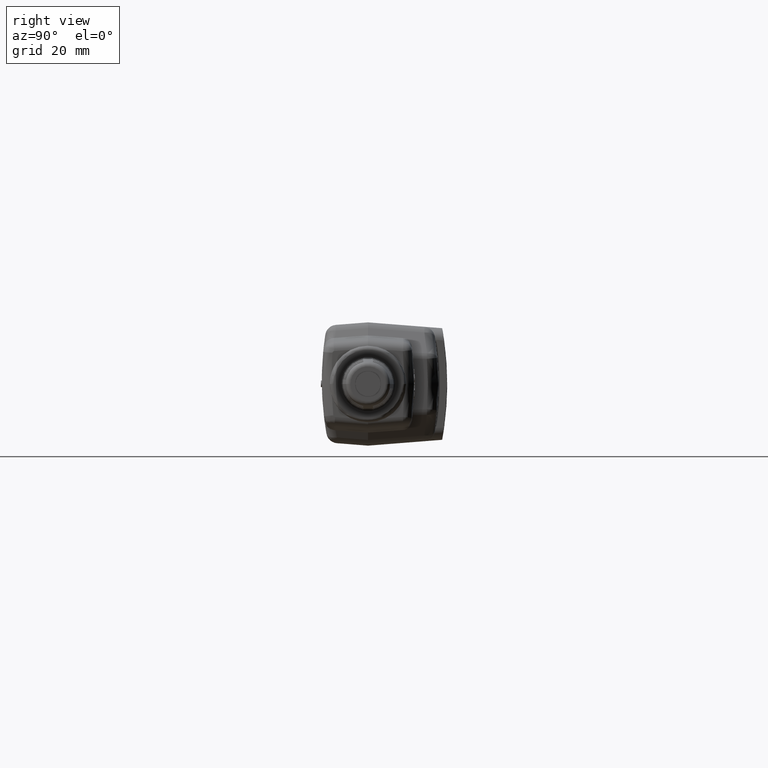
[diagram: clean part render]
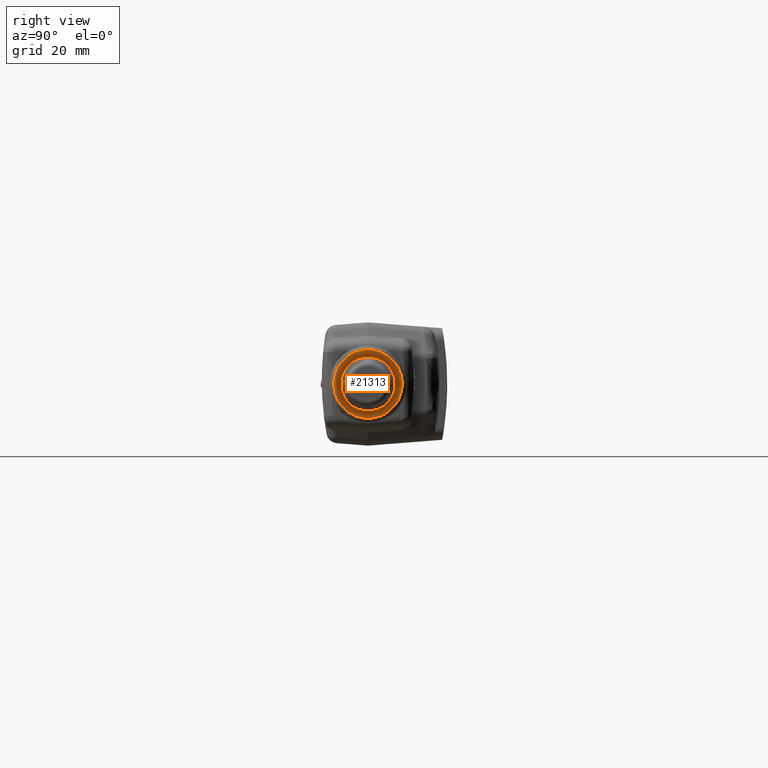
[diagram: same view with one face highlighted and labeled with its STEP entity id]
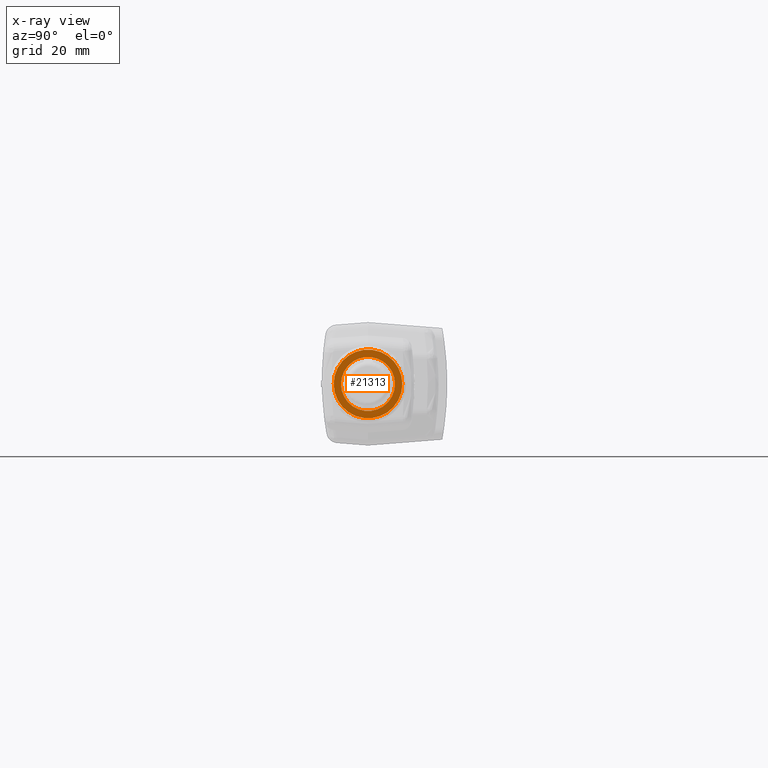
[diagram: x-ray of the same camera — body ghosted, the highlighted face saturated]
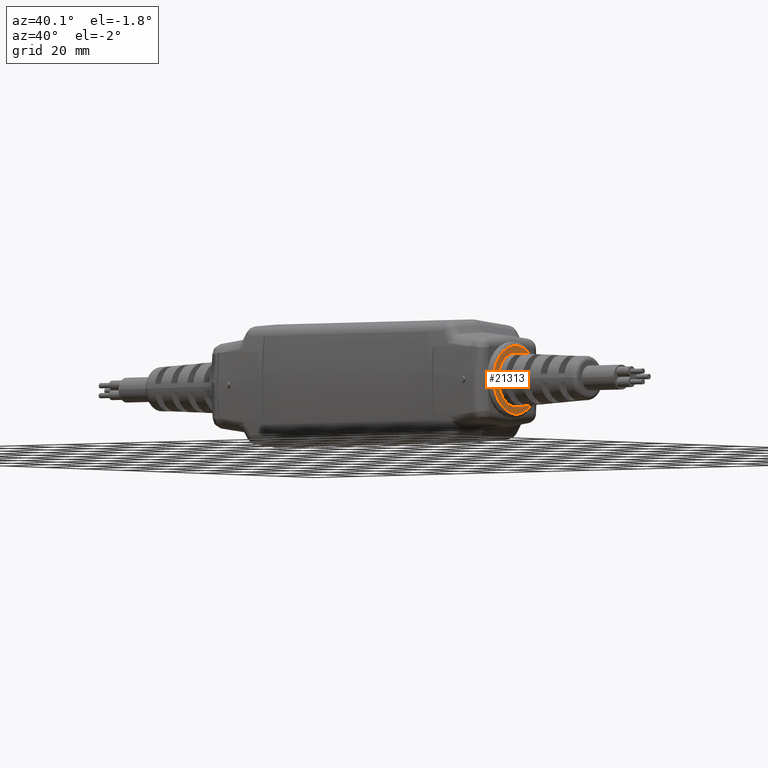
[diagram: same view with one face highlighted and labeled with its STEP entity id]
A machine part, right view. The second image highlights one B-rep face of the part: STEP entity #21313.
The next image is the same camera in x-ray: the body ghosted, the highlighted face saturated — about 0% of this face is hidden behind the body in this view.
A second angle (auxiliary view) of the same face is appended — the face is thin or edge-on in the first view.
In plain terms, the highlighted planar face has unit normal (-1, -0, -0).
Its self-contained STEP definition (entity closure, byte-faithful):
#902 = EDGE_CURVE ( 'NONE', #24005, #6854, #6839, .T. ) ;
#1056 = CARTESIAN_POINT ( 'NONE',  ( 2.413279527559054838, -0.4260684349350275513, 5.344050195368135646E-16 ) ) ;
#1431 = AXIS2_PLACEMENT_3D ( 'NONE', #7691, #14941, #5259 ) ;
#3138 = DIRECTION ( 'NONE',  ( -1.000000000000000000, -3.564050570092639508E-17, -2.526667914707950258E-16 ) ) ;
#3564 = CARTESIAN_POINT ( 'NONE',  ( 2.413279527559054838, 0.02195188560991327004, 5.364518159617001705E-16 ) ) ;
#4346 = VERTEX_POINT ( 'NONE', #1056 ) ;
#5227 = EDGE_CURVE ( 'NONE', #9957, #4346, #5921, .T. ) ;
#5259 = DIRECTION ( 'NONE',  ( 0.000000000000000000, -1.000000000000000000, -5.370845286300814882E-18 ) ) ;
#5836 = PLANE ( 'NONE',  #6027 ) ;
#5921 = CIRCLE ( 'NONE', #22867, 0.4480203205449408421 ) ;
#6027 = AXIS2_PLACEMENT_3D ( 'NONE', #3564, #3138, #26464 ) ;
#6839 = CIRCLE ( 'NONE', #28154, 0.3529527559055117836 ) ;
#6854 = VERTEX_POINT ( 'NONE', #19075 ) ;
#7031 = EDGE_CURVE ( 'NONE', #4346, #9957, #19743, .T. ) ;
#7691 = CARTESIAN_POINT ( 'NONE',  ( 2.413279527559054838, 0.02195188560991327004, 5.364518159617001705E-16 ) ) ;
#7723 = ORIENTED_EDGE ( 'NONE', *, *, #7931, .T. ) ;
#7931 = EDGE_CURVE ( 'NONE', #6854, #24005, #27571, .T. ) ;
#9023 = EDGE_LOOP ( 'NONE', ( #7723, #19388 ) ) ;
#9957 = VERTEX_POINT ( 'NONE', #20529 ) ;
#13130 = DIRECTION ( 'NONE',  ( 1.000000000000000000, 3.564050570092638275E-17, 2.526667914707950258E-16 ) ) ;
#14467 = DIRECTION ( 'NONE',  ( 0.000000000000000000, -1.000000000000000000, -5.370845286300854171E-18 ) ) ;
#14888 = ORIENTED_EDGE ( 'NONE', *, *, #5227, .T. ) ;
#14941 = DIRECTION ( 'NONE',  ( -1.000000000000000000, -3.564050570092638275E-17, -2.526667914707950258E-16 ) ) ;
#15530 = DIRECTION ( 'NONE',  ( 0.000000000000000000, -1.000000000000000000, -5.370845286300854171E-18 ) ) ;
#16143 = CARTESIAN_POINT ( 'NONE',  ( 2.413279527559054838, 0.02195188560991326310, 5.368112673635793339E-16 ) ) ;
#19053 = CARTESIAN_POINT ( 'NONE',  ( 2.413279527559054838, 0.02195188560991326310, 5.368112673635793339E-16 ) ) ;
#19075 = CARTESIAN_POINT ( 'NONE',  ( 2.413279527559054838, -0.3310008702955985482, 5.345561613163581449E-16 ) ) ;
#19241 = CARTESIAN_POINT ( 'NONE',  ( 2.413279527559054838, 0.02195188560991327004, 5.364518159617001705E-16 ) ) ;
#19388 = ORIENTED_EDGE ( 'NONE', *, *, #902, .T. ) ;
#19743 = CIRCLE ( 'NONE', #22146, 0.4480203205449408421 ) ;
#20529 = CARTESIAN_POINT ( 'NONE',  ( 2.413279527559054838, 0.4699722061548540775, 5.912896077843854030E-16 ) ) ;
#21313 = ADVANCED_FACE ( 'NONE', ( #21599, #28469 ), #5836, .F. ) ;
#21512 = ORIENTED_EDGE ( 'NONE', *, *, #7031, .T. ) ;
#21599 = FACE_OUTER_BOUND ( 'NONE', #25360, .T. ) ;
#22146 = AXIS2_PLACEMENT_3D ( 'NONE', #16143, #13130, #15530 ) ;
#22867 = AXIS2_PLACEMENT_3D ( 'NONE', #19053, #25563, #14467 ) ;
#23617 = DIRECTION ( 'NONE',  ( -1.000000000000000000, -3.564050570092638275E-17, -2.526667914707950258E-16 ) ) ;
#23759 = CARTESIAN_POINT ( 'NONE',  ( 2.413279527559054838, 0.3749046415154250189, 5.815717168840343192E-16 ) ) ;
#24005 = VERTEX_POINT ( 'NONE', #23759 ) ;
#25360 = EDGE_LOOP ( 'NONE', ( #21512, #14888 ) ) ;
#25563 = DIRECTION ( 'NONE',  ( 1.000000000000000000, 3.564050570092638275E-17, 2.526667914707950258E-16 ) ) ;
#26464 = DIRECTION ( 'NONE',  ( 3.564050570092639508E-17, -1.000000000000000000, -5.370845286300817963E-18 ) ) ;
#27571 = CIRCLE ( 'NONE', #1431, 0.3529527559055117836 ) ;
#28154 = AXIS2_PLACEMENT_3D ( 'NONE', #19241, #23617, #28812 ) ;
#28469 = FACE_BOUND ( 'NONE', #9023, .T. ) ;
#28812 = DIRECTION ( 'NONE',  ( 0.000000000000000000, -1.000000000000000000, -5.370845286300814882E-18 ) ) ;